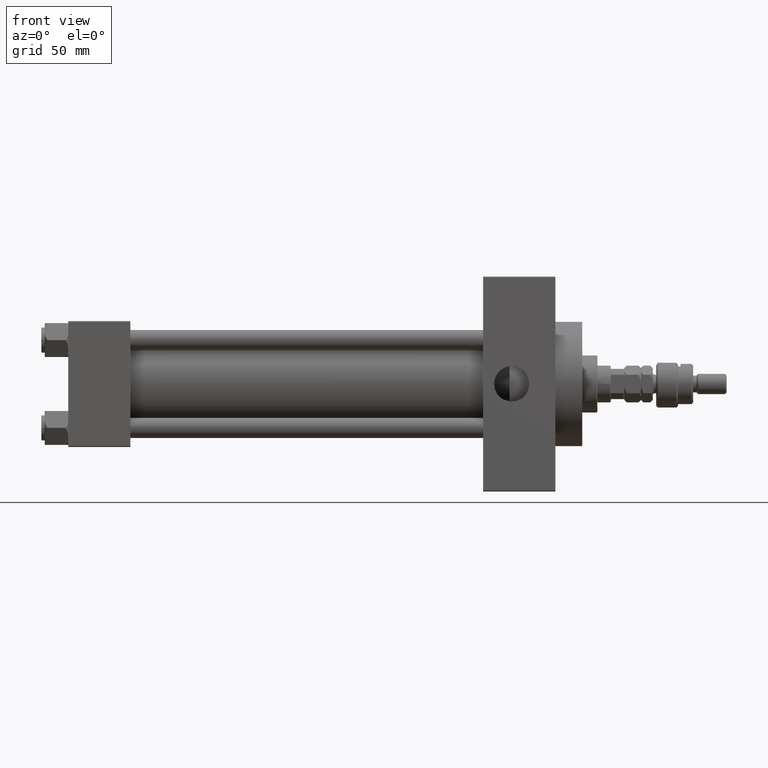
[diagram: clean part render]
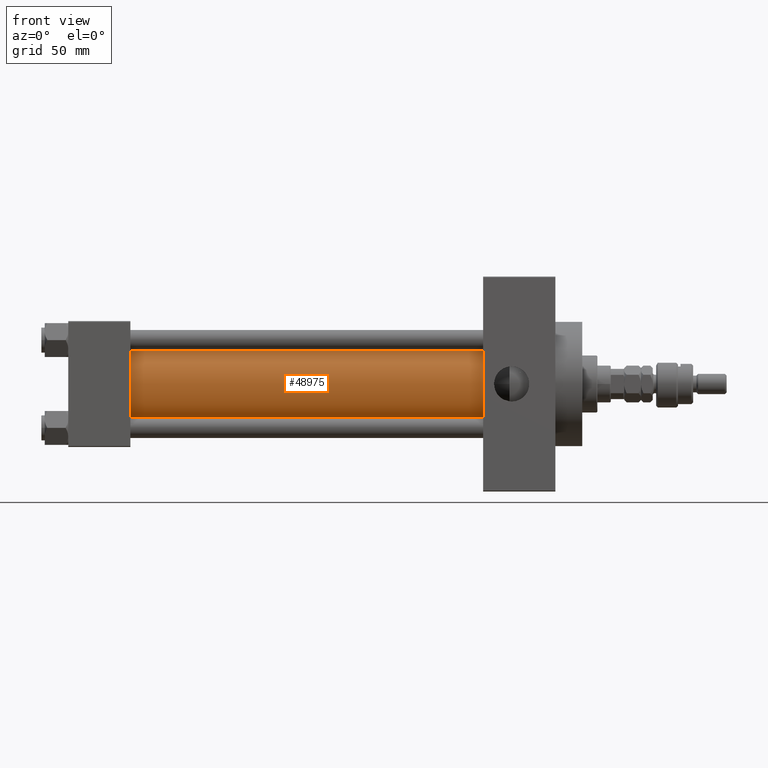
[diagram: same view with one face highlighted and labeled with its STEP entity id]
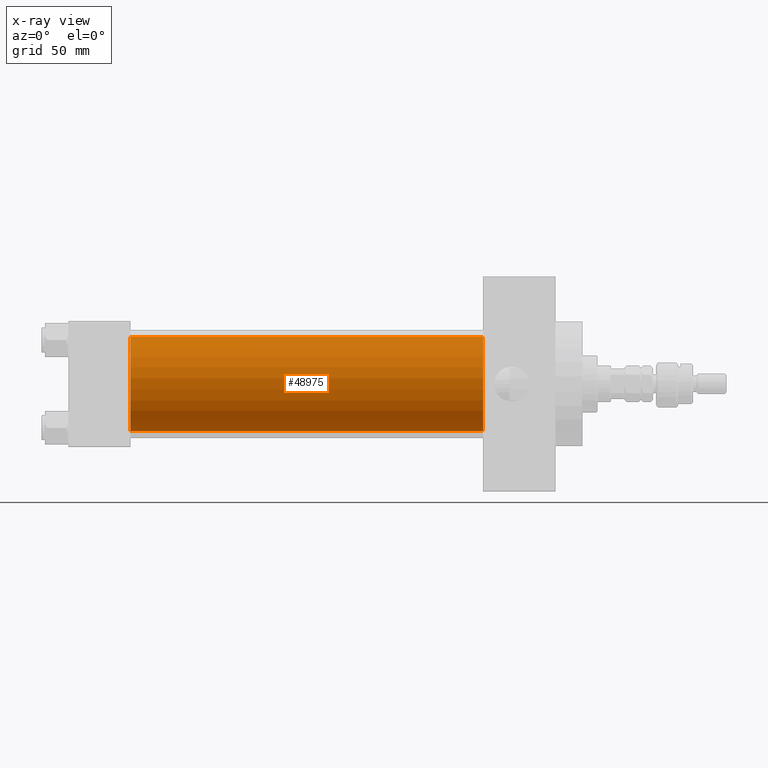
[diagram: x-ray of the same camera — body ghosted, the highlighted face saturated]
A machine part, front view. The second image highlights one B-rep face of the part: STEP entity #48975.
The next image is the same camera in x-ray: the body ghosted, the highlighted face saturated — about 0% of this face is hidden behind the body in this view.
In plain terms, the highlighted cylindrical surface (partial cylindrical patch) has radius 28 mm, axis along (-1, -0, -0).
Its self-contained STEP definition (entity closure, byte-faithful):
#1746 = EDGE_CURVE ( 'NONE', #12835, #33814, #10081, .T. ) ;
#2521 = CIRCLE ( 'NONE', #32088, 28.00000000000000000 ) ;
#2710 = CARTESIAN_POINT ( 'NONE',  ( 247.0000000000000000, -2.602085213965210642E-15, 28.00000000000000000 ) ) ;
#3783 = VECTOR ( 'NONE', #10615, 1000.000000000000000 ) ;
#6522 = ORIENTED_EDGE ( 'NONE', *, *, #48321, .F. ) ;
#6916 = AXIS2_PLACEMENT_3D ( 'NONE', #9251, #44736, #13232 ) ;
#7542 = DIRECTION ( 'NONE',  ( 0.000000000000000000, 0.000000000000000000, 1.000000000000000000 ) ) ;
#9251 = CARTESIAN_POINT ( 'NONE',  ( 247.0000000000000000, -2.602085213965210642E-15, 0.000000000000000000 ) ) ;
#9575 = CYLINDRICAL_SURFACE ( 'NONE', #35630, 28.00000000000000000 ) ;
#9749 = CARTESIAN_POINT ( 'NONE',  ( 37.00000000000000711, -2.602085213965210642E-15, 28.00000000000000000 ) ) ;
#10081 = LINE ( 'NONE', #40359, #3783 ) ;
#10615 = DIRECTION ( 'NONE',  ( -1.000000000000000000, -0.000000000000000000, -0.000000000000000000 ) ) ;
#11172 = EDGE_CURVE ( 'NONE', #30852, #44211, #23355, .T. ) ;
#12094 = CARTESIAN_POINT ( 'NONE',  ( 247.0000000000000000, 8.269258236473784371E-16, -28.00000000000000000 ) ) ;
#12835 = VERTEX_POINT ( 'NONE', #12094 ) ;
#13232 = DIRECTION ( 'NONE',  ( 0.000000000000000000, 0.000000000000000000, -1.000000000000000000 ) ) ;
#16678 = EDGE_CURVE ( 'NONE', #44211, #33814, #2521, .T. ) ;
#17070 = EDGE_LOOP ( 'NONE', ( #30238, #6522, #51824, #37951 ) ) ;
#20090 = VECTOR ( 'NONE', #23082, 1000.000000000000000 ) ;
#23082 = DIRECTION ( 'NONE',  ( -1.000000000000000000, -0.000000000000000000, -0.000000000000000000 ) ) ;
#23355 = LINE ( 'NONE', #2710, #20090 ) ;
#25706 = DIRECTION ( 'NONE',  ( -1.000000000000000000, -0.000000000000000000, -0.000000000000000000 ) ) ;
#29681 = FACE_OUTER_BOUND ( 'NONE', #17070, .T. ) ;
#30091 = CARTESIAN_POINT ( 'NONE',  ( 37.00000000000000711, 8.269258236473784371E-16, -28.00000000000000000 ) ) ;
#30238 = ORIENTED_EDGE ( 'NONE', *, *, #1746, .F. ) ;
#30543 = CIRCLE ( 'NONE', #6916, 28.00000000000000000 ) ;
#30561 = CARTESIAN_POINT ( 'NONE',  ( 37.00000000000000711, -2.602085213965210642E-15, 0.000000000000000000 ) ) ;
#30852 = VERTEX_POINT ( 'NONE', #36160 ) ;
#32088 = AXIS2_PLACEMENT_3D ( 'NONE', #30561, #51739, #7542 ) ;
#33814 = VERTEX_POINT ( 'NONE', #30091 ) ;
#35630 = AXIS2_PLACEMENT_3D ( 'NONE', #41610, #25706, #41869 ) ;
#36160 = CARTESIAN_POINT ( 'NONE',  ( 247.0000000000000000, -2.602085213965210642E-15, 28.00000000000000000 ) ) ;
#37951 = ORIENTED_EDGE ( 'NONE', *, *, #16678, .T. ) ;
#40359 = CARTESIAN_POINT ( 'NONE',  ( 247.0000000000000000, 8.269258236473784371E-16, -28.00000000000000000 ) ) ;
#41610 = CARTESIAN_POINT ( 'NONE',  ( 247.0000000000000000, -2.602085213965210642E-15, 0.000000000000000000 ) ) ;
#41869 = DIRECTION ( 'NONE',  ( 0.000000000000000000, 0.000000000000000000, 1.000000000000000000 ) ) ;
#44211 = VERTEX_POINT ( 'NONE', #9749 ) ;
#44736 = DIRECTION ( 'NONE',  ( 1.000000000000000000, 0.000000000000000000, 0.000000000000000000 ) ) ;
#48321 = EDGE_CURVE ( 'NONE', #30852, #12835, #30543, .T. ) ;
#48975 = ADVANCED_FACE ( 'NONE', ( #29681 ), #9575, .T. ) ;
#51739 = DIRECTION ( 'NONE',  ( 1.000000000000000000, -0.000000000000000000, 0.000000000000000000 ) ) ;
#51824 = ORIENTED_EDGE ( 'NONE', *, *, #11172, .T. ) ;